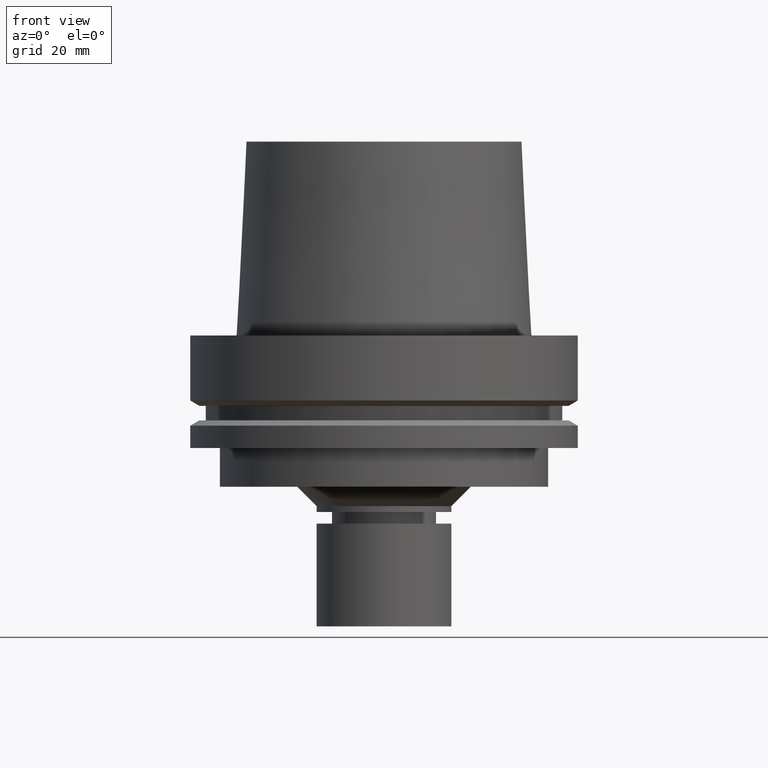
[diagram: clean part render]
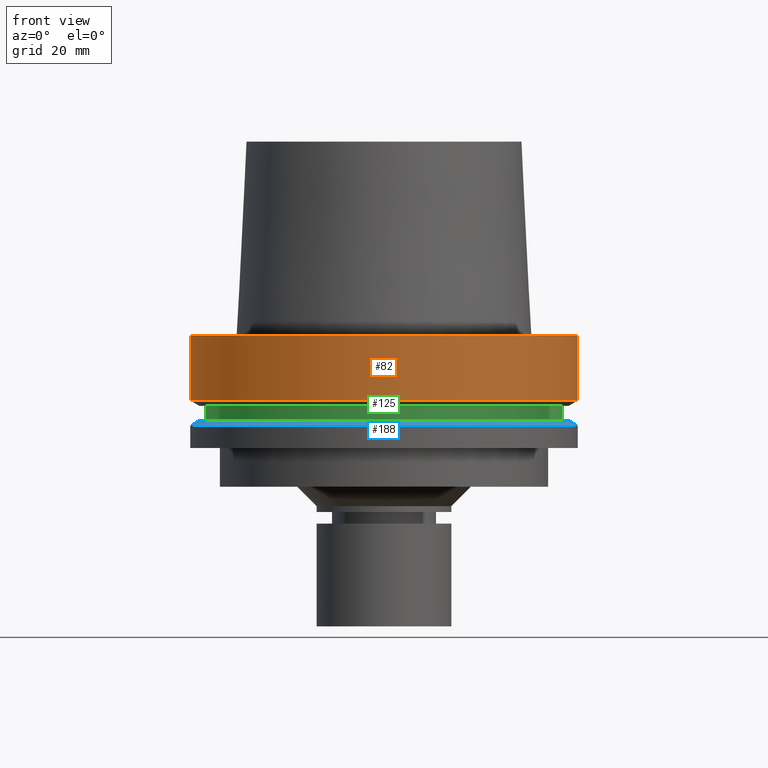
[diagram: same view with three faces highlighted in distinct colors, each labeled with its STEP entity id]
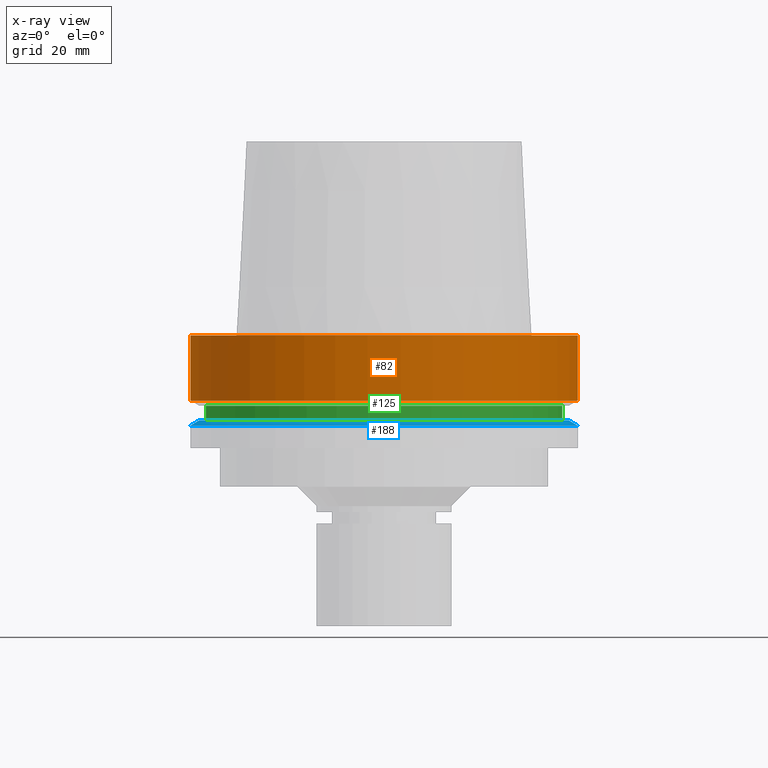
[diagram: x-ray of the same camera — body ghosted, the three highlighted faces saturated]
A machine part, front view with three faces highlighted in distinct colors.
The next image is the same camera in x-ray (body ghosted, the three faces saturated) — at least one of them is partly hidden behind the body in this view.
Their STEP definitions:

[orange] entity #82 — the highlighted cylindrical surface (bore or boss wall) has radius 50 mm, axis along (0, 0, -1).
#82=ADVANCED_FACE('Unnamed[1]',(#223,#224),#225,.T.);
#132=EDGE_CURVE('Unnamed[1]',#301,#301,#302,.T.);
#162=EDGE_CURVE('Unnamed[1]',#346,#346,#347,.T.);
#223=FACE_BOUND('',#423,.T.);
#224=FACE_BOUND('',#424,.T.);
#225=CYLINDRICAL_SURFACE('',#425,50.0);
#301=VERTEX_POINT('',#521);
#302=CIRCLE('',#522,50.0);
#346=VERTEX_POINT('',#577);
#347=CIRCLE('',#578,50.0);
#423=EDGE_LOOP('',(#656));
#424=EDGE_LOOP('',(#657));
#425=AXIS2_PLACEMENT_3D('',#658,#659,#660);
#521=CARTESIAN_POINT('',(1.0257889421431E-015,50.0,-16.75240474));
#522=AXIS2_PLACEMENT_3D('',#745,#746,#747);
#577=CARTESIAN_POINT('',(-1.81547968506605E-031,50.0,-9.76766004263236E-016));
#578=AXIS2_PLACEMENT_3D('',#793,#794,#795);
#656=ORIENTED_EDGE('',*,*,#132,.F.);
#657=ORIENTED_EDGE('',*,*,#162,.T.);
#658=CARTESIAN_POINT('',(5.12894471071548E-016,1.0257889421431E-015,-8.37620236999999));
#659=DIRECTION('',(6.12323399573677E-017,1.22464679914735E-016,-1.0));
#660=DIRECTION('',(-1.23259516440783E-032,1.0,1.22464679914735E-016));
#745=CARTESIAN_POINT('',(1.0257889421431E-015,2.05157788428619E-015,-16.75240474));
#746=DIRECTION('',(6.12323399573677E-017,1.22464679914735E-016,-1.0));
#747=DIRECTION('',(-1.23259516440783E-032,1.0,1.22464679914735E-016));
#793=CARTESIAN_POINT('',(0.0,0.0,0.0));
#794=DIRECTION('',(6.12323399573677E-017,1.22464679914735E-016,-1.0));
#795=DIRECTION('',(-1.23259516440783E-032,1.0,1.22464679914735E-016));

[blue] entity #188 — the highlighted conical surface has half-angle 60 deg.
#158=EDGE_CURVE('Unnamed[1]',#340,#340,#341,.T.);
#164=EDGE_CURVE('Unnamed[1]',#349,#349,#350,.T.);
#188=ADVANCED_FACE('Unnamed[1]',(#387,#388),#389,.T.);
#340=VERTEX_POINT('',#569);
#341=CIRCLE('',#570,50.0);
#349=VERTEX_POINT('',#581);
#350=CIRCLE('',#582,47.62259526);
#387=FACE_BOUND('',#628,.T.);
#388=FACE_BOUND('',#629,.T.);
#389=CONICAL_SURFACE('',#630,48.81129763,1.04719755328238);
#569=CARTESIAN_POINT('',(1.42350465615161E-015,50.0,-23.24759526));
#570=AXIS2_PLACEMENT_3D('',#787,#788,#789);
#581=CARTESIAN_POINT('',(1.33945743656742E-015,47.62259526,-21.875));
#582=AXIS2_PLACEMENT_3D('',#796,#797,#798);
#628=EDGE_LOOP('',(#839));
#629=EDGE_LOOP('',(#840));
#630=AXIS2_PLACEMENT_3D('',#841,#842,#843);
#787=CARTESIAN_POINT('',(1.42350465615161E-015,2.84700931230322E-015,-23.24759526));
#788=DIRECTION('',(6.12323399573677E-017,1.22464679914735E-016,-1.0));
#789=DIRECTION('',(-1.23259516440783E-032,1.0,1.22464679914735E-016));
#796=CARTESIAN_POINT('',(1.33945743656742E-015,2.67891487313484E-015,-21.875));
#797=DIRECTION('',(6.12323399573676E-017,1.22464679914735E-016,-1.0));
#798=DIRECTION('',(-1.23259516440783E-032,1.0,1.22464679914735E-016));
#839=ORIENTED_EDGE('',*,*,#158,.F.);
#840=ORIENTED_EDGE('',*,*,#164,.T.);
#841=CARTESIAN_POINT('',(1.38148104635951E-015,2.76296209271903E-015,-22.56129763));
#842=DIRECTION('',(6.12323399573677E-017,1.22464679914735E-016,-1.0));
#843=DIRECTION('',(-1.23259516440783E-032,1.0,1.22464679914735E-016));

[green] entity #125 — the highlighted cylindrical surface (bore or boss wall) has radius 46 mm, axis along (0, 0, -1).
#84=EDGE_CURVE('Unnamed[1]',#227,#227,#228,.T.);
#125=ADVANCED_FACE('Unnamed[1]',(#289,#290),#291,.T.);
#198=EDGE_CURVE('Unnamed[1]',#402,#402,#403,.T.);
#227=VERTEX_POINT('',#428);
#228=CIRCLE('',#429,46.0);
#289=FACE_BOUND('',#506,.T.);
#290=FACE_BOUND('',#507,.T.);
#291=CYLINDRICAL_SURFACE('',#508,46.0);
#402=VERTEX_POINT('',#646);
#403=CIRCLE('',#647,46.0);
#428=CARTESIAN_POINT('',(1.10983616172729E-015,46.0,-18.125));
#429=AXIS2_PLACEMENT_3D('',#661,#662,#663);
#506=EDGE_LOOP('',(#731));
#507=EDGE_LOOP('',(#732));
#508=AXIS2_PLACEMENT_3D('',#733,#734,#735);
#646=CARTESIAN_POINT('',(1.33945743656742E-015,46.0,-21.875));
#647=AXIS2_PLACEMENT_3D('',#854,#855,#856);
#661=CARTESIAN_POINT('',(1.10983616172729E-015,2.21967232345458E-015,-18.125));
#662=DIRECTION('',(6.12323399573677E-017,1.22464679914735E-016,-1.0));
#663=DIRECTION('',(-1.23259516440783E-032,1.0,1.22464679914735E-016));
#731=ORIENTED_EDGE('',*,*,#198,.F.);
#732=ORIENTED_EDGE('',*,*,#84,.T.);
#733=CARTESIAN_POINT('',(1.22464679914735E-015,2.44929359829471E-015,-20.0));
#734=DIRECTION('',(6.12323399573677E-017,1.22464679914735E-016,-1.0));
#735=DIRECTION('',(-1.23259516440783E-032,1.0,1.22464679914735E-016));
#854=CARTESIAN_POINT('',(1.33945743656742E-015,2.67891487313484E-015,-21.875));
#855=DIRECTION('',(6.12323399573677E-017,1.22464679914735E-016,-1.0));
#856=DIRECTION('',(-1.23259516440783E-032,1.0,1.22464679914735E-016));